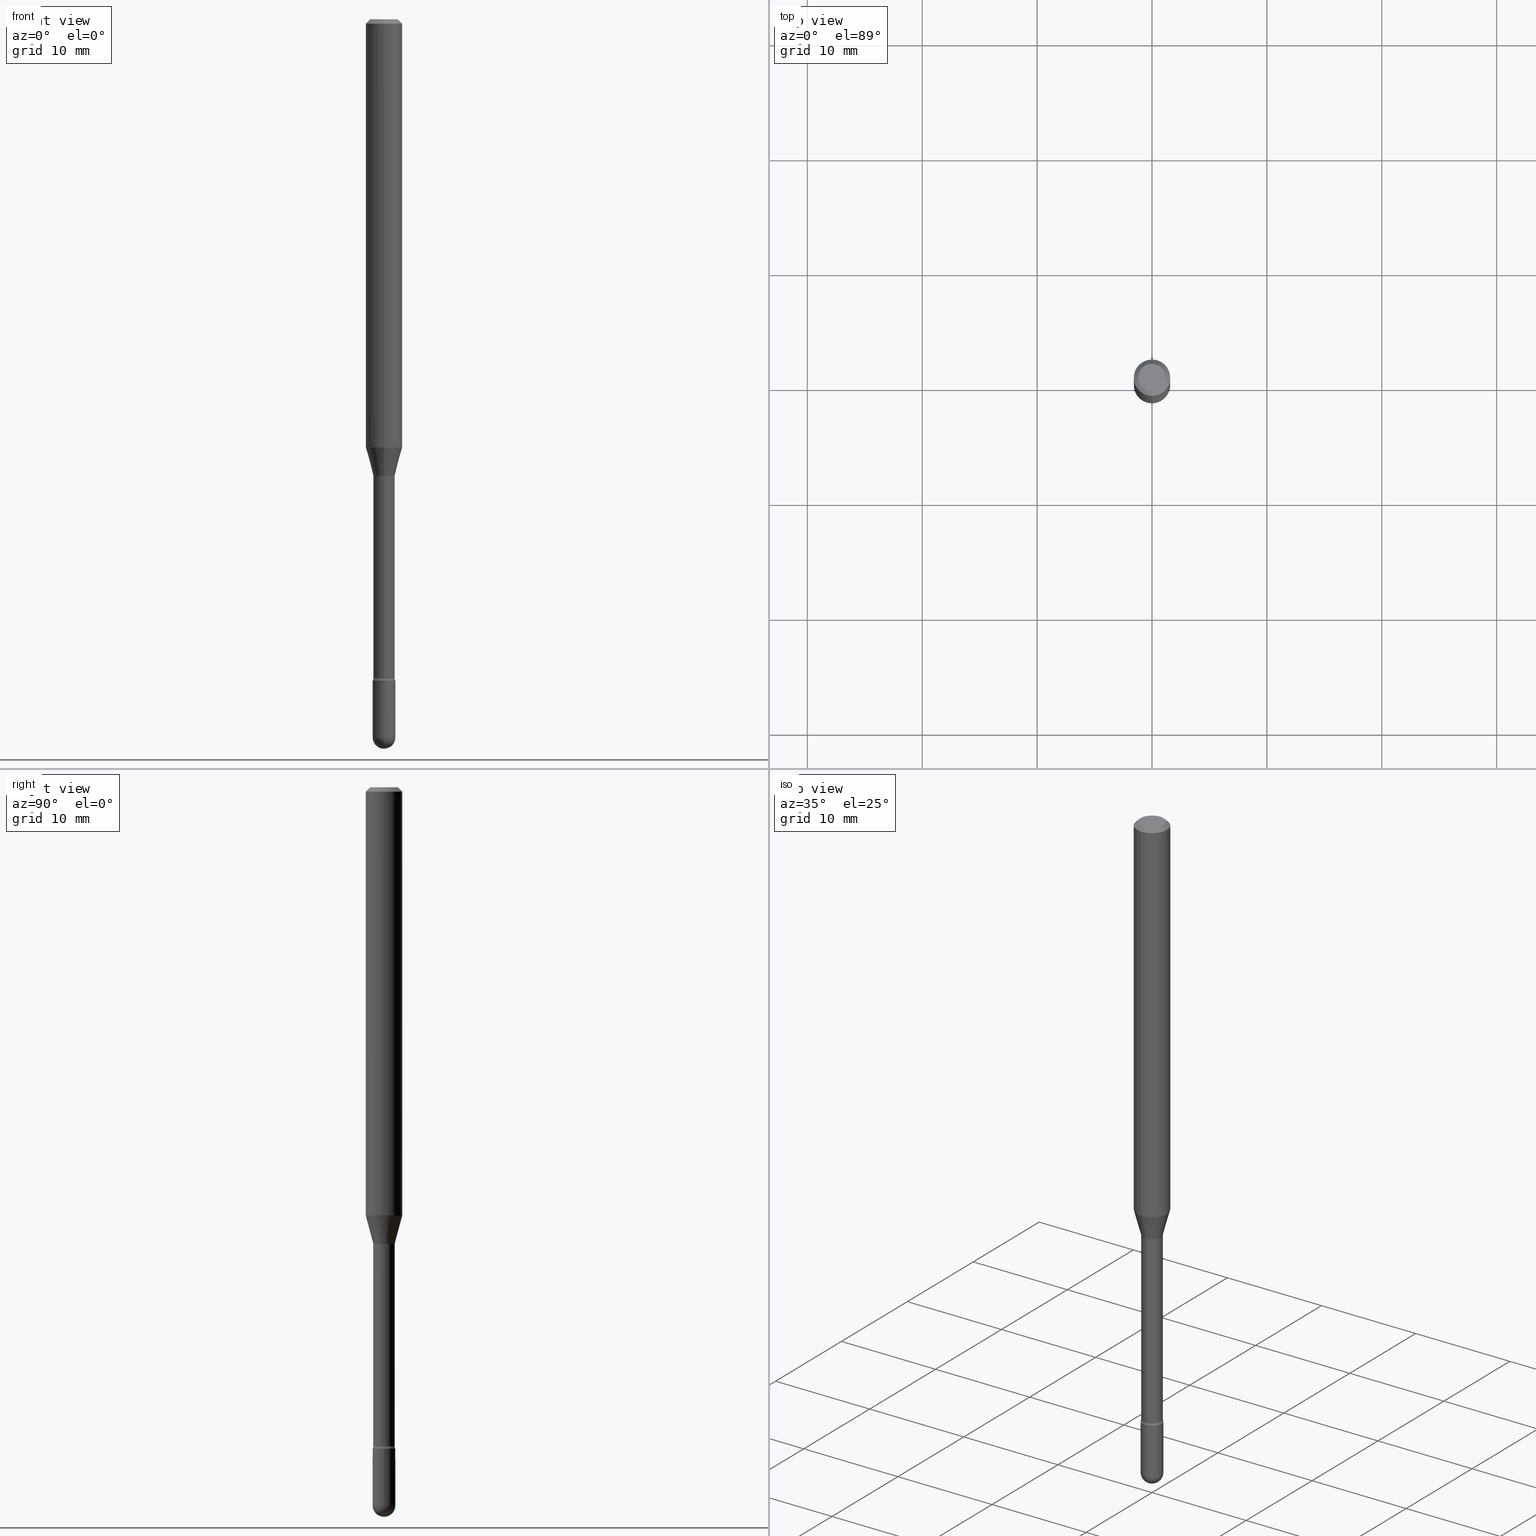
[diagram: canonical four-view strip — front | top / right | iso, engineering-drawing reading convention]
A machine part, canonical four-view strip (front | top / right | iso — engineering-drawing reading convention). The complete STEP part file that produces these views, byte-faithful:
ISO-10303-21;
HEADER;
FILE_DESCRIPTION (( 'STEP AP203' ),
    '1' );
FILE_NAME ('03795.STEP',
    '2024-04-09T20:29:45',
    ( '' ),
    ( '' ),
    'SwSTEP 2.0',
    'SolidWorks 2023',
    '' );
FILE_SCHEMA (( 'CONFIG_CONTROL_DESIGN' ));
ENDSEC;

DATA;
#1 = AXIS2_PLACEMENT_3D ( 'NONE', #217, #303, #262 ) ;
#2 = AXIS2_PLACEMENT_3D ( 'NONE', #484, #485, #46 ) ;
#3 =( NAMED_UNIT ( * ) PLANE_ANGLE_UNIT ( ) SI_UNIT ( $, .RADIAN. ) );
#4 = CARTESIAN_POINT ( 'NONE',  ( 4.440892098500625669E-16, 0.06250000000000000000, 2.598526516763685098E-16 ) ) ;
#5 = EDGE_CURVE ( 'NONE', #500, #62, #154, .T. ) ;
#6 = DIRECTION ( 'NONE',  ( -1.000000000000000000, 6.982962677686265922E-15, -4.883557194083112340E-29 ) ) ;
#7 = CARTESIAN_POINT ( 'NONE',  ( 4.440892098500987066E-16, 0.06249999999999995143, -0.01500000000000030129 ) ) ;
#8 = APPROVAL_ROLE ( '' ) ;
#9 = AXIS2_PLACEMENT_3D ( 'NONE', #145, #140, #232 ) ;
#10 = ORIENTED_EDGE ( 'NONE', *, *, #279, .F. ) ;
#11 = DIRECTION ( 'NONE',  ( -6.982962677686266711E-15, -1.000000000000000000, 3.491531955438041249E-15 ) ) ;
#12 = EDGE_LOOP ( 'NONE', ( #59, #552, #495, #470 ) ) ;
#13 = PERSON_AND_ORGANIZATION_ROLE ( 'classification_officer' ) ;
#14 = ADVANCED_FACE ( 'NONE', ( #448 ), #536, .T. ) ;
#15 = CARTESIAN_POINT ( 'NONE',  ( 5.541432314815520264E-29, -7.911696713818568140E-15, -2.266000000000000014 ) ) ;
#16 = FACE_OUTER_BOUND ( 'NONE', #106, .T. ) ;
#17 = VERTEX_POINT ( 'NONE', #469 ) ;
#18 = PERSON_AND_ORGANIZATION ( #211, #244 ) ;
#19 = DIRECTION ( 'NONE',  ( 2.445433460805833894E-29, -3.491531955438040460E-15, -1.000000000000000000 ) ) ;
#20 = ORIENTED_EDGE ( 'NONE', *, *, #115, .F. ) ;
#21 = CARTESIAN_POINT ( 'NONE',  ( -2.559255821371468665E-16, -0.03665000000000794705, -2.257939137763241177 ) ) ;
#22 = SHAPE_DEFINITION_REPRESENTATION ( #254, #84 ) ;
#23 = DIRECTION ( 'NONE',  ( -2.445433460805834174E-29, 3.491531955438040854E-15, 1.000000000000000000 ) ) ;
#24 = AXIS2_PLACEMENT_3D ( 'NONE', #299, #517, #32 ) ;
#25 = CARTESIAN_POINT ( 'NONE',  ( 0.03899999999999999994, -2.723355444297643682E-16, 1.901708942560414931E-30 ) ) ;
#26 = ORIENTED_EDGE ( 'NONE', *, *, #68, .F. ) ;
#27 = EDGE_CURVE ( 'NONE', #359, #190, #240, .T. ) ;
#28 = DIRECTION ( 'NONE',  ( -6.982962677686265133E-15, -1.000000000000000000, 3.491531955438040854E-15 ) ) ;
#29 = ORIENTED_EDGE ( 'NONE', *, *, #424, .F. ) ;
#30 = ORIENTED_EDGE ( 'NONE', *, *, #324, .F. ) ;
#31 = ORIENTED_EDGE ( 'NONE', *, *, #180, .F. ) ;
#32 = DIRECTION ( 'NONE',  ( -6.982962677686265922E-15, -1.000000000000000000, 3.491531955438041643E-15 ) ) ;
#33 = CARTESIAN_POINT ( 'NONE',  ( 4.440892098500981149E-16, 0.06249999999999484440, -1.467526486624345150 ) ) ;
#34 = EDGE_LOOP ( 'NONE', ( #354, #278, #425, #456 ) ) ;
#35 = CARTESIAN_POINT ( 'NONE',  ( 3.840629472727447874E-16, 0.04749999999999999362, -2.485923956665947867E-16 ) ) ;
#36 = CLOSED_SHELL ( 'NONE', ( #168, #566, #14, #483, #300 ) ) ;
#37 = CONICAL_SURFACE ( 'NONE', #499, 0.06250000000000000000, 0.7853981633974483900 ) ;
#38 = ORIENTED_EDGE ( 'NONE', *, *, #565, .F. ) ;
#39 = CARTESIAN_POINT ( 'NONE',  ( 2.723355444298251598E-16, 0.03899999999999149286, -2.460999999999999854 ) ) ;
#40 = CARTESIAN_POINT ( 'NONE',  ( -0.03899999999999999994, -7.975004477409334639E-15, -2.266000000000000014 ) ) ;
#41 = EDGE_CURVE ( 'NONE', #186, #283, #173, .T. ) ;
#42 = AXIS2_PLACEMENT_3D ( 'NONE', #170, #127, #250 ) ;
#43 = ADVANCED_FACE ( 'NONE', ( #199 ), #242, .T. ) ;
#44 = MANIFOLD_SOLID_BREP ( 'Body-Move/Copy2[1]', #36 ) ;
#45 = MANIFOLD_SOLID_BREP ( 'Body-Move/Copy2[2]', #337 ) ;
#46 = DIRECTION ( 'NONE',  ( -6.982962677686265922E-15, -1.000000000000000000, 3.491531955438040460E-15 ) ) ;
#47 = FACE_OUTER_BOUND ( 'NONE', #109, .T. ) ;
#48 = DIRECTION ( 'NONE',  ( -2.445433460805834174E-29, 3.491531955438040854E-15, 1.000000000000000000 ) ) ;
#49 = AXIS2_PLACEMENT_3D ( 'NONE', #358, #411, #114 ) ;
#50 = AXIS2_PLACEMENT_3D ( 'NONE', #88, #212, #388 ) ;
#51 = DIRECTION ( 'NONE',  ( 6.982962677686265922E-15, 1.000000000000000000, 0.000000000000000000 ) ) ;
#52 = DIRECTION ( 'NONE',  ( -2.445433460805834454E-29, 3.491531955438040460E-15, 1.000000000000000000 ) ) ;
#53 = APPLICATION_CONTEXT ( 'configuration controlled 3d designs of mechanical parts and assemblies' ) ;
#54 = PERSON_AND_ORGANIZATION ( #211, #244 ) ;
#55 = DIRECTION ( 'NONE',  ( -6.982962677686264344E-15, -1.000000000000000000, 0.000000000000000000 ) ) ;
#56 = FACE_OUTER_BOUND ( 'NONE', #503, .T. ) ;
#57 = CC_DESIGN_PERSON_AND_ORGANIZATION_ASSIGNMENT ( #368, #108, ( #340 ) ) ;
#58 = AXIS2_PLACEMENT_3D ( 'NONE', #377, #475, #166 ) ;
#59 = ORIENTED_EDGE ( 'NONE', *, *, #369, .F. ) ;
#60 = PERSON_AND_ORGANIZATION_ROLE ( 'creator' ) ;
#61 = CARTESIAN_POINT ( 'NONE',  ( 6.115339589726740991E-29, -8.726315285849526900E-15, -2.500000000000000000 ) ) ;
#62 = VERTEX_POINT ( 'NONE', #188 ) ;
#63 = DIRECTION ( 'NONE',  ( 1.839019923739594399E-15, 0.2588190451025241257, 0.9659258262890673130 ) ) ;
#64 = COORDINATED_UNIVERSAL_TIME_OFFSET ( 5, 0, .BEHIND. ) ;
#65 = DIRECTION ( 'NONE',  ( 1.000000000000000000, -6.982962677686265922E-15, 4.876176775795935793E-29 ) ) ;
#66 = EDGE_CURVE ( 'NONE', #417, #67, #89, .T. ) ;
#67 = VERTEX_POINT ( 'NONE', #318 ) ;
#68 = EDGE_CURVE ( 'NONE', #427, #313, #229, .T. ) ;
#69 = DATE_AND_TIME ( #226, #466 ) ;
#70 = CONICAL_SURFACE ( 'NONE', #349, 0.03716111260566391100, 0.2617993877991494633 ) ;
#71 = PLANE ( 'NONE',  #213 ) ;
#72 = CIRCLE ( 'NONE', #259, 0.03900000000000000688 ) ;
#73 = ORIENTED_EDGE ( 'NONE', *, *, #351, .F. ) ;
#74 = DIRECTION ( 'NONE',  ( 1.000000000000000000, -6.982962677686265922E-15, 4.876176775795935793E-29 ) ) ;
#75 = DIRECTION ( 'NONE',  ( -1.000000000000000000, 6.982962677686265922E-15, -4.883557194083112340E-29 ) ) ;
#76 = ORIENTED_EDGE ( 'NONE', *, *, #273, .F. ) ;
#77 = VERTEX_POINT ( 'NONE', #322 ) ;
#78 = DIRECTION ( 'NONE',  ( 1.000000000000000000, -6.982962677686258033E-15, 0.000000000000000000 ) ) ;
#79 = DIRECTION ( 'NONE',  ( 6.982962677686265922E-15, 1.000000000000000000, -3.483106191921935554E-15 ) ) ;
#80 = VERTEX_POINT ( 'NONE', #61 ) ;
#81 = CARTESIAN_POINT ( 'NONE',  ( 6.018298732021620914E-29, -8.592535574892981353E-15, -2.460999999999999854 ) ) ;
#82 = ADVANCED_FACE ( 'NONE', ( #236 ), #71, .F. ) ;
#83 = CONICAL_SURFACE ( 'NONE', #307, 0.06250000000000000000, 0.7853981633974483900 ) ;
#84 = ADVANCED_BREP_SHAPE_REPRESENTATION ( '03795', ( #44, #45, #391 ), #419 ) ;
#85 = CARTESIAN_POINT ( 'NONE',  ( 3.829542494015149710E-29, -5.467571747528758613E-15, -1.565974787463811246 ) ) ;
#86 = EDGE_CURVE ( 'NONE', #67, #77, #285, .T. ) ;
#87 = CARTESIAN_POINT ( 'NONE',  ( 3.819993272744496548E-29, -5.454095887340420113E-15, -1.562092501787273768 ) ) ;
#88 = CARTESIAN_POINT ( 'NONE',  ( -1.169113584055446105E-44, 1.669184350826100908E-30, 4.780733988912460139E-16 ) ) ;
#89 = CIRCLE ( 'NONE', #49, 0.03900000000000000688 ) ;
#90 = AXIS2_PLACEMENT_3D ( 'NONE', #253, #557, #331 ) ;
#91 = LOCAL_TIME ( 16, 29, 45.00000000000000000, #352 ) ;
#92 = DIRECTION ( 'NONE',  ( -6.982962677686265133E-15, -1.000000000000000000, 3.491531955438040854E-15 ) ) ;
#93 = CARTESIAN_POINT ( 'NONE',  ( -3.773273898774340269E-16, -0.04749999999999999362, 8.310314010001909345E-17 ) ) ;
#94 = EDGE_CURVE ( 'NONE', #125, #17, #206, .T. ) ;
#95 = CARTESIAN_POINT ( 'NONE',  ( 6.018298732021620914E-29, -8.592535574892981353E-15, -2.460999999999999854 ) ) ;
#96 = DIRECTION ( 'NONE',  ( -2.445433460805834454E-29, 3.491531955438040460E-15, 1.000000000000000000 ) ) ;
#97 = ORIENTED_EDGE ( 'NONE', *, *, #550, .T. ) ;
#98 = TOROIDAL_SURFACE ( 'NONE', #175, 0.05165000000000008473, 0.01500000000000002200 ) ;
#99 = AXIS2_PLACEMENT_3D ( 'NONE', #271, #310, #393 ) ;
#100 = APPLICATION_PROTOCOL_DEFINITION ( 'international standard', 'config_control_design', 1994, #130 ) ;
#101 = APPROVAL_STATUS ( 'not_yet_approved' ) ;
#102 = APPROVAL ( #192, 'UNSPECIFIED' ) ;
#103 = CARTESIAN_POINT ( 'NONE',  ( -2.594946623866095287E-16, -0.03716111260566937191, -1.562092501787273768 ) ) ;
#104 = DIRECTION ( 'NONE',  ( -6.982962677686266711E-15, -1.000000000000000000, 0.000000000000000000 ) ) ;
#105 = DIRECTION ( 'NONE',  ( -1.000000000000000000, 6.982962677686265922E-15, -4.883557194083112340E-29 ) ) ;
#106 = EDGE_LOOP ( 'NONE', ( #459, #223, #200, #371 ) ) ;
#107 = DIRECTION ( 'NONE',  ( -2.445468806185136597E-29, 3.491481338843145583E-15, 1.000000000000000000 ) ) ;
#108 = PERSON_AND_ORGANIZATION_ROLE ( 'creator' ) ;
#109 = EDGE_LOOP ( 'NONE', ( #38, #248, #123, #544 ) ) ;
#110 = CARTESIAN_POINT ( 'NONE',  ( 3.668150191208771282E-31, -5.237297933157090296E-17, -0.01500000000000008271 ) ) ;
#111 = ORIENTED_EDGE ( 'NONE', *, *, #336, .T. ) ;
#112 = CARTESIAN_POINT ( 'NONE',  ( 3.668150191208771282E-31, -5.237297933157090296E-17, -0.01500000000000008271 ) ) ;
#113 = MECHANICAL_CONTEXT ( 'NONE', #130, 'mechanical' ) ;
#114 = DIRECTION ( 'NONE',  ( 1.000000000000000000, -6.982962677686282488E-15, 0.000000000000000000 ) ) ;
#115 = EDGE_CURVE ( 'NONE', #190, #77, #433, .T. ) ;
#116 = EDGE_LOOP ( 'NONE', ( #460, #442, #509, #319 ) ) ;
#117 = DATE_AND_TIME ( #498, #350 ) ;
#118 = ORIENTED_EDGE ( 'NONE', *, *, #138, .F. ) ;
#119 = VERTEX_POINT ( 'NONE', #39 ) ;
#120 = AXIS2_PLACEMENT_3D ( 'NONE', #160, #292, #146 ) ;
#121 = ORIENTED_EDGE ( 'NONE', *, *, #380, .T. ) ;
#122 = LOCAL_TIME ( 16, 29, 45.00000000000000000, #64 ) ;
#123 = ORIENTED_EDGE ( 'NONE', *, *, #539, .T. ) ;
#124 = CARTESIAN_POINT ( 'NONE',  ( 5.541432314815520264E-29, -7.911696713818568140E-15, -2.266000000000000014 ) ) ;
#125 = VERTEX_POINT ( 'NONE', #520 ) ;
#126 = EDGE_CURVE ( 'NONE', #62, #325, #330, .T. ) ;
#127 = DIRECTION ( 'NONE',  ( -2.445468806185136597E-29, 3.491481338843145583E-15, 1.000000000000000000 ) ) ;
#128 = DIRECTION ( 'NONE',  ( 1.000000000000000000, -6.982962677686282488E-15, 0.000000000000000000 ) ) ;
#129 = CC_DESIGN_APPROVAL ( #224, ( #340 ) ) ;
#130 = APPLICATION_CONTEXT ( 'configuration controlled 3d designs of mechanical parts and assemblies' ) ;
#131 = ADVANCED_FACE ( 'NONE', ( #553 ), #387, .T. ) ;
#132 = CARTESIAN_POINT ( 'NONE',  ( 6.018298732021620914E-29, -8.592535574892981353E-15, -2.460999999999999854 ) ) ;
#133 = FACE_OUTER_BOUND ( 'NONE', #378, .T. ) ;
#134 = CIRCLE ( 'NONE', #447, 0.04749999999999999362 ) ;
#135 = CC_DESIGN_SECURITY_CLASSIFICATION ( #294, ( #430 ) ) ;
#136 = DIRECTION ( 'NONE',  ( -2.445433460805834174E-29, 3.491531955438040854E-15, 1.000000000000000000 ) ) ;
#137 = EDGE_CURVE ( 'NONE', #17, #451, #293, .T. ) ;
#138 = EDGE_CURVE ( 'NONE', #77, #190, #390, .T. ) ;
#139 = DIRECTION ( 'NONE',  ( 1.000000000000000000, -6.982962677686282488E-15, 0.000000000000000000 ) ) ;
#140 = DIRECTION ( 'NONE',  ( 1.000000000000000000, -7.105427357601001070E-15, 4.926316128416591653E-29 ) ) ;
#141 =( LENGTH_UNIT ( ) NAMED_UNIT ( * ) SI_UNIT ( $, .METRE. ) );
#142 = AXIS2_PLACEMENT_3D ( 'NONE', #205, #429, #74 ) ;
#143 = APPROVAL_PERSON_ORGANIZATION ( #54, #102, #348 ) ;
#144 = ADVANCED_FACE ( 'NONE', ( #201 ), #467, .T. ) ;
#145 = CARTESIAN_POINT ( 'NONE',  ( 3.669953230201474697E-16, 0.05164999999999220215, -2.257939137763242066 ) ) ;
#146 = DIRECTION ( 'NONE',  ( -7.105427357601000281E-15, -1.000000000000000000, 0.000000000000000000 ) ) ;
#147 = ORIENTED_EDGE ( 'NONE', *, *, #41, .T. ) ;
#148 = CARTESIAN_POINT ( 'NONE',  ( 2.771116669464944896E-16, 0.03899999999999211042, -2.266000000000000458 ) ) ;
#149 = DIRECTION ( 'NONE',  ( -2.445433460805834174E-29, 3.491531955438040854E-15, 1.000000000000000000 ) ) ;
#150 = FACE_OUTER_BOUND ( 'NONE', #34, .T. ) ;
#151 = VERTEX_POINT ( 'NONE', #426 ) ;
#152 = LINE ( 'NONE', #457, #182 ) ;
#153 = APPROVAL_DATE_TIME ( #117, #224 ) ;
#154 = LINE ( 'NONE', #295, #343 ) ;
#155 = ORIENTED_EDGE ( 'NONE', *, *, #369, .T. ) ;
#156 = APPROVAL_DATE_TIME ( #69, #102 ) ;
#157 = DIRECTION ( 'NONE',  ( -6.982962677686265922E-15, -1.000000000000000000, 3.491531955438040854E-15 ) ) ;
#158 = ORIENTED_EDGE ( 'NONE', *, *, #66, .T. ) ;
#159 = ORIENTED_EDGE ( 'NONE', *, *, #137, .T. ) ;
#160 = CARTESIAN_POINT ( 'NONE',  ( 6.018298732021620914E-29, -8.592535574892981353E-15, -2.460999999999999854 ) ) ;
#161 = CARTESIAN_POINT ( 'NONE',  ( -0.03899999999999999994, 2.771116669464390721E-16, -1.918384685199413078E-30 ) ) ;
#162 = VERTEX_POINT ( 'NONE', #35 ) ;
#163 = DIRECTION ( 'NONE',  ( -2.445468806185136597E-29, 3.491481338843145583E-15, 1.000000000000000000 ) ) ;
#164 = DIMENSIONAL_EXPONENTS ( 1.000000000000000000, 0.000000000000000000, 0.000000000000000000, 0.000000000000000000, 0.000000000000000000, 0.000000000000000000, 0.000000000000000000 ) ;
#165 = CIRCLE ( 'NONE', #366, 0.03900000000000000688 ) ;
#166 = DIRECTION ( 'NONE',  ( -6.982962677686265922E-15, -1.000000000000000000, 0.000000000000000000 ) ) ;
#167 = APPROVAL_PERSON_ORGANIZATION ( #18, #304, #183 ) ;
#168 = ADVANCED_FACE ( 'NONE', ( #335 ), #474, .T. ) ;
#169 = ORIENTED_EDGE ( 'NONE', *, *, #138, .T. ) ;
#170 = CARTESIAN_POINT ( 'NONE',  ( 5.541432314815520264E-29, -7.911696713818568140E-15, -2.266000000000000014 ) ) ;
#171 = ORIENTED_EDGE ( 'NONE', *, *, #527, .F. ) ;
#172 = EDGE_LOOP ( 'NONE', ( #412, #555, #118, #514, #247 ) ) ;
#173 = CIRCLE ( 'NONE', #480, 0.06250000000000000000 ) ;
#174 = DIRECTION ( 'NONE',  ( 6.982962677686266711E-15, 1.000000000000000000, 0.000000000000000000 ) ) ;
#175 = AXIS2_PLACEMENT_3D ( 'NONE', #251, #23, #28 ) ;
#176 = CARTESIAN_POINT ( 'NONE',  ( -3.606700223024573445E-16, -0.05165000000000546237, -1.565974787463811024 ) ) ;
#177 = PRODUCT_RELATED_PRODUCT_CATEGORY ( 'detail', '', ( #385 ) ) ;
#178 = CIRCLE ( 'NONE', #99, 0.03665000000000000202 ) ;
#179 = LENGTH_MEASURE_WITH_UNIT ( LENGTH_MEASURE( 0.02539999999999999897 ), #141 );
#180 = EDGE_CURVE ( 'NONE', #119, #359, #379, .T. ) ;
#181 = DIRECTION ( 'NONE',  ( 6.982962677686265922E-15, 1.000000000000000000, -3.483106191921935554E-15 ) ) ;
#182 = VECTOR ( 'NONE', #63, 39.37007874015748854 ) ;
#183 = APPROVAL_ROLE ( '' ) ;
#184 = DIRECTION ( 'NONE',  ( -2.445468806185136877E-29, 3.491481338843145188E-15, 1.000000000000000000 ) ) ;
#185 = DIRECTION ( 'NONE',  ( -2.445433460805834174E-29, 3.491531955438040854E-15, 1.000000000000000000 ) ) ;
#186 = VERTEX_POINT ( 'NONE', #33 ) ;
#187 = APPLICATION_PROTOCOL_DEFINITION ( 'international standard', 'config_control_design', 1994, #53 ) ;
#188 = CARTESIAN_POINT ( 'NONE',  ( -4.364351673553912750E-16, -0.06250000000000005551, -0.01499999999999986587 ) ) ;
#189 = CYLINDRICAL_SURFACE ( 'NONE', #320, 0.06250000000000000000 ) ;
#190 = VERTEX_POINT ( 'NONE', #40 ) ;
#191 = LINE ( 'NONE', #409, #476 ) ;
#192 = APPROVAL_STATUS ( 'not_yet_approved' ) ;
#193 = DIRECTION ( 'NONE',  ( -6.982962677686265922E-15, -1.000000000000000000, 0.000000000000000000 ) ) ;
#194 = ORIENTED_EDGE ( 'NONE', *, *, #137, .F. ) ;
#195 = CIRCLE ( 'NONE', #58, 0.03665000000000006447 ) ;
#196 = FACE_OUTER_BOUND ( 'NONE', #506, .T. ) ;
#197 = EDGE_LOOP ( 'NONE', ( #29, #30, #298, #159 ) ) ;
#198 = ORIENTED_EDGE ( 'NONE', *, *, #5, .T. ) ;
#199 = FACE_OUTER_BOUND ( 'NONE', #256, .T. ) ;
#200 = ORIENTED_EDGE ( 'NONE', *, *, #126, .F. ) ;
#201 = FACE_OUTER_BOUND ( 'NONE', #237, .T. ) ;
#202 = CC_DESIGN_DATE_AND_TIME_ASSIGNMENT ( #444, #234, ( #294 ) ) ;
#203 = EDGE_CURVE ( 'NONE', #313, #427, #195, .T. ) ;
#204 = EDGE_LOOP ( 'NONE', ( #534, #473, #538, #542 ) ) ;
#205 = CARTESIAN_POINT ( 'NONE',  ( 0.000000000000000000, 0.000000000000000000, 0.000000000000000000 ) ) ;
#206 = CIRCLE ( 'NONE', #291, 0.01500000000000001853 ) ;
#207 = CIRCLE ( 'NONE', #525, 0.01500000000000001853 ) ;
#208 = AXIS2_PLACEMENT_3D ( 'NONE', #87, #436, #302 ) ;
#209 = ORIENTED_EDGE ( 'NONE', *, *, #261, .F. ) ;
#210 = DIRECTION ( 'NONE',  ( -6.982962677686265922E-15, -1.000000000000000000, 3.483106191921935554E-15 ) ) ;
#211 = PERSON ( 'UNSPECIFIED', 'UNSPECIFIED', 'UNSPECIFIED', ('UNSPECIFIED'), ('UNSPECIFIED'), ('UNSPECIFIED') ) ;
#212 = DIRECTION ( 'NONE',  ( -2.445433460805834174E-29, 3.491531955438040854E-15, 1.000000000000000000 ) ) ;
#213 = AXIS2_PLACEMENT_3D ( 'NONE', #551, #19, #328 ) ;
#214 = CARTESIAN_POINT ( 'NONE',  ( -2.771116669463794638E-16, -0.03900000000000868744, -2.460999999999999854 ) ) ;
#215 = VECTOR ( 'NONE', #450, 39.37007874015748143 ) ;
#216 = CIRCLE ( 'NONE', #208, 0.03716111260566391100 ) ;
#217 = CARTESIAN_POINT ( 'NONE',  ( 3.669953230201299669E-16, 0.05164999999999453362, -1.565974787463811690 ) ) ;
#218 = DIRECTION ( 'NONE',  ( 6.982962677686265922E-15, 1.000000000000000000, 0.000000000000000000 ) ) ;
#219 = CC_DESIGN_PERSON_AND_ORGANIZATION_ASSIGNMENT ( #413, #13, ( #294 ) ) ;
#220 = PLANE ( 'NONE',  #2 ) ;
#222 = LINE ( 'NONE', #441, #515 ) ;
#221 = AXIS2_PLACEMENT_3D ( 'NONE', #132, #562, #174 ) ;
#223 = ORIENTED_EDGE ( 'NONE', *, *, #351, .T. ) ;
#224 = APPROVAL ( #492, 'UNSPECIFIED' ) ;
#225 =( CONVERSION_BASED_UNIT ( 'INCH', #179 ) LENGTH_UNIT ( ) NAMED_UNIT ( #164 ) );
#226 = CALENDAR_DATE ( 2024, 9, 4 ) ;
#227 = CARTESIAN_POINT ( 'NONE',  ( 2.604139126560769297E-16, 0.03665000000000003672, 3.501087527244417361E-16 ) ) ;
#228 = AXIS2_PLACEMENT_3D ( 'NONE', #277, #454, #193 ) ;
#229 = CIRCLE ( 'NONE', #228, 0.03665000000000006447 ) ;
#230 = CIRCLE ( 'NONE', #556, 0.06250000000000000000 ) ;
#231 = CARTESIAN_POINT ( 'NONE',  ( 3.588738375009998954E-29, -5.123915623500615867E-15, -1.467526486624344928 ) ) ;
#232 = DIRECTION ( 'NONE',  ( 7.105427357601001859E-15, 1.000000000000000000, 0.000000000000000000 ) ) ;
#233 = DIRECTION ( 'NONE',  ( 1.000000000000000000, -6.982962677686265922E-15, 4.876176775795935793E-29 ) ) ;
#234 = DATE_TIME_ROLE ( 'classification_date' ) ;
#235 = ADVANCED_FACE ( 'NONE', ( #260 ), #37, .T. ) ;
#236 = FACE_OUTER_BOUND ( 'NONE', #519, .T. ) ;
#237 = EDGE_LOOP ( 'NONE', ( #73, #147, #111, #76 ) ) ;
#238 = CARTESIAN_POINT ( 'NONE',  ( 3.819993272744496548E-29, -5.454095887340420113E-15, -1.562092501787273768 ) ) ;
#239 = PERSON_AND_ORGANIZATION ( #211, #244 ) ;
#240 = LINE ( 'NONE', #161, #416 ) ;
#241 = ORIENTED_EDGE ( 'NONE', *, *, #115, .T. ) ;
#242 = CONICAL_SURFACE ( 'NONE', #513, 0.03716111260566391100, 0.2617993877991494633 ) ;
#243 = AXIS2_PLACEMENT_3D ( 'NONE', #462, #245, #414 ) ;
#244 = ORGANIZATION ( 'UNSPECIFIED', 'UNSPECIFIED', '' ) ;
#245 = DIRECTION ( 'NONE',  ( -2.445433460805834174E-29, 3.491531955438040854E-15, 1.000000000000000000 ) ) ;
#246 = ORIENTED_EDGE ( 'NONE', *, *, #435, .F. ) ;
#247 = ORIENTED_EDGE ( 'NONE', *, *, #527, .T. ) ;
#248 = ORIENTED_EDGE ( 'NONE', *, *, #424, .T. ) ;
#249 = ADVANCED_FACE ( 'NONE', ( #547 ), #70, .T. ) ;
#250 = DIRECTION ( 'NONE',  ( 1.000000000000000000, -6.982962677686258033E-15, 0.000000000000000000 ) ) ;
#251 = CARTESIAN_POINT ( 'NONE',  ( 5.521719727664570921E-29, -7.883552363743941400E-15, -2.257939137763241622 ) ) ;
#252 = ORIENTED_EDGE ( 'NONE', *, *, #561, .F. ) ;
#253 = CARTESIAN_POINT ( 'NONE',  ( 3.829487144042308608E-29, -5.467651011840191045E-15, -1.565974787463811246 ) ) ;
#254 = PRODUCT_DEFINITION_SHAPE ( 'NONE', 'NONE',  #340 ) ;
#255 = DIRECTION ( 'NONE',  ( -2.445433460805834174E-29, 3.491531955438040854E-15, 1.000000000000000000 ) ) ;
#256 = EDGE_LOOP ( 'NONE', ( #420, #548, #375, #546 ) ) ;
#257 = DIRECTION ( 'NONE',  ( -2.445468806185136597E-29, 3.491481338843145583E-15, 1.000000000000000000 ) ) ;
#258 = VECTOR ( 'NONE', #96, 39.37007874015748143 ) ;
#259 = AXIS2_PLACEMENT_3D ( 'NONE', #95, #478, #139 ) ;
#260 = FACE_OUTER_BOUND ( 'NONE', #362, .T. ) ;
#261 = EDGE_CURVE ( 'NONE', #359, #417, #165, .T. ) ;
#262 = DIRECTION ( 'NONE',  ( 7.105427357600998703E-15, 1.000000000000000000, 0.000000000000000000 ) ) ;
#263 = LINE ( 'NONE', #394, #382 ) ;
#264 = AXIS2_PLACEMENT_3D ( 'NONE', #124, #163, #78 ) ;
#265 = EDGE_CURVE ( 'NONE', #313, #17, #191, .T. ) ;
#266 = CIRCLE ( 'NONE', #9, 0.01500000000000001853 ) ;
#267 = TOROIDAL_SURFACE ( 'NONE', #449, 0.05164999999999999453, 0.01500000000000001679 ) ;
#268 = EDGE_CURVE ( 'NONE', #283, #186, #332, .T. ) ;
#269 = DIRECTION ( 'NONE',  ( -1.000000000000000000, 6.982962677686265922E-15, -4.883557194083112340E-29 ) ) ;
#270 = DIRECTION ( 'NONE',  ( -2.445433460805834174E-29, 3.491531955438040854E-15, 1.000000000000000000 ) ) ;
#271 = CARTESIAN_POINT ( 'NONE',  ( 3.829487144042308608E-29, -5.467651011840191045E-15, -1.565974787463811246 ) ) ;
#272 = AXIS2_PLACEMENT_3D ( 'NONE', #85, #327, #157 ) ;
#273 = EDGE_CURVE ( 'NONE', #325, #62, #230, .T. ) ;
#274 = AXIS2_PLACEMENT_3D ( 'NONE', #398, #270, #92 ) ;
#275 = CALENDAR_DATE ( 2024, 9, 4 ) ;
#276 = LINE ( 'NONE', #227, #258 ) ;
#277 = CARTESIAN_POINT ( 'NONE',  ( 5.521639919949304874E-29, -7.883666652934574778E-15, -2.257939137763241177 ) ) ;
#278 = ORIENTED_EDGE ( 'NONE', *, *, #380, .F. ) ;
#279 = EDGE_CURVE ( 'NONE', #80, #417, #563, .T. ) ;
#280 = COORDINATED_UNIVERSAL_TIME_OFFSET ( 5, 0, .BEHIND. ) ;
#281 = DIRECTION ( 'NONE',  ( -6.982962677686265922E-15, -1.000000000000000000, 4.370956789862821150E-15 ) ) ;
#282 = CARTESIAN_POINT ( 'NONE',  ( -1.169113584055446105E-44, 1.669184350826100908E-30, 4.780733988912460139E-16 ) ) ;
#283 = VERTEX_POINT ( 'NONE', #314 ) ;
#284 = DATE_TIME_ROLE ( 'creation_date' ) ;
#285 = LINE ( 'NONE', #25, #530 ) ;
#286 = EDGE_LOOP ( 'NONE', ( #464, #334 ) ) ;
#287 = DATE_AND_TIME ( #453, #122 ) ;
#288 = ORIENTED_EDGE ( 'NONE', *, *, #550, .F. ) ;
#289 = EDGE_CURVE ( 'NONE', #125, #283, #494, .T. ) ;
#290 = ORIENTED_EDGE ( 'NONE', *, *, #126, .T. ) ;
#291 = AXIS2_PLACEMENT_3D ( 'NONE', #176, #75, #376 ) ;
#292 = DIRECTION ( 'NONE',  ( -1.000000000000000000, 7.105427357601001070E-15, -4.926315508542082329E-29 ) ) ;
#293 = CIRCLE ( 'NONE', #90, 0.03665000000000000202 ) ;
#294 = SECURITY_CLASSIFICATION ( '', '', #406 ) ;
#295 = CARTESIAN_POINT ( 'NONE',  ( -4.287811248607203282E-16, -0.06250000000000005551, -0.01499999999999986587 ) ) ;
#296 = ORIENTED_EDGE ( 'NONE', *, *, #261, .T. ) ;
#297 = DIRECTION ( 'NONE',  ( -2.445433460805834174E-29, 3.491531955438040854E-15, 1.000000000000000000 ) ) ;
#298 = ORIENTED_EDGE ( 'NONE', *, *, #94, .T. ) ;
#299 = CARTESIAN_POINT ( 'NONE',  ( -1.169113584055446105E-44, 1.669184350826100908E-30, 4.780733988912460139E-16 ) ) ;
#300 = ADVANCED_FACE ( 'NONE', ( #56 ), #535, .T. ) ;
#301 = CIRCLE ( 'NONE', #1, 0.01500000000000001853 ) ;
#302 = DIRECTION ( 'NONE',  ( -6.982962677686266711E-15, -1.000000000000000000, 0.000000000000000000 ) ) ;
#303 = DIRECTION ( 'NONE',  ( 1.000000000000000000, -7.105427357601001070E-15, 4.926316128416591653E-29 ) ) ;
#304 = APPROVAL ( #101, 'UNSPECIFIED' ) ;
#305 = EDGE_CURVE ( 'NONE', #151, #186, #152, .T. ) ;
#306 = DIRECTION ( 'NONE',  ( -6.982962677686266711E-15, -1.000000000000000000, 3.491531955438041249E-15 ) ) ;
#307 = AXIS2_PLACEMENT_3D ( 'NONE', #110, #493, #181 ) ;
#308 = AXIS2_PLACEMENT_3D ( 'NONE', #497, #107, #233 ) ;
#309 = AXIS2_PLACEMENT_3D ( 'NONE', #342, #136, #306 ) ;
#310 = DIRECTION ( 'NONE',  ( -2.445433460805834174E-29, 3.491531955438040854E-15, 1.000000000000000000 ) ) ;
#311 = DIRECTION ( 'NONE',  ( 4.937700262164548042E-15, 0.7071067811865451302, -0.7071067811865499042 ) ) ;
#312 = FACE_OUTER_BOUND ( 'NONE', #496, .T. ) ;
#313 = VERTEX_POINT ( 'NONE', #21 ) ;
#314 = CARTESIAN_POINT ( 'NONE',  ( -4.364351673553559242E-16, -0.06250000000000516254, -1.467526486624344484 ) ) ;
#315 = DIRECTION ( 'NONE',  ( -2.445433460805834174E-29, 3.491531955438040854E-15, 1.000000000000000000 ) ) ;
#316 = CARTESIAN_POINT ( 'NONE',  ( -3.606700223024410249E-16, -0.05165000000000796038, -2.257939137763241177 ) ) ;
#317 = DIRECTION ( 'NONE',  ( -2.445433460805834454E-29, 3.491531955438040460E-15, 1.000000000000000000 ) ) ;
#318 = CARTESIAN_POINT ( 'NONE',  ( 0.03900000000000000688, -8.524451688785538770E-15, -2.460999999999999854 ) ) ;
#319 = ORIENTED_EDGE ( 'NONE', *, *, #539, .F. ) ;
#320 = AXIS2_PLACEMENT_3D ( 'NONE', #282, #48, #364 ) ;
#321 = APPROVAL_DATE_TIME ( #287, #304 ) ;
#322 = CARTESIAN_POINT ( 'NONE',  ( 0.03899999999999999994, -8.184032258248332163E-15, -2.266000000000000014 ) ) ;
#323 = ORIENTED_EDGE ( 'NONE', *, *, #435, .T. ) ;
#324 = EDGE_CURVE ( 'NONE', #125, #151, #345, .T. ) ;
#325 = VERTEX_POINT ( 'NONE', #7 ) ;
#326 = ORIENTED_EDGE ( 'NONE', *, *, #355, .T. ) ;
#327 = DIRECTION ( 'NONE',  ( -2.445433460805834174E-29, 3.491531955438040854E-15, 1.000000000000000000 ) ) ;
#328 = DIRECTION ( 'NONE',  ( 6.982962677686265922E-15, 1.000000000000000000, -3.491531955438040460E-15 ) ) ;
#329 = ORIENTED_EDGE ( 'NONE', *, *, #279, .T. ) ;
#330 = CIRCLE ( 'NONE', #532, 0.06250000000000000000 ) ;
#331 = DIRECTION ( 'NONE',  ( -6.982962677686265133E-15, -1.000000000000000000, 0.000000000000000000 ) ) ;
#332 = CIRCLE ( 'NONE', #481, 0.06250000000000000000 ) ;
#333 = TOROIDAL_SURFACE ( 'NONE', #274, 0.05165000000000008473, 0.01500000000000002200 ) ;
#334 = ORIENTED_EDGE ( 'NONE', *, *, #383, .F. ) ;
#335 = FACE_OUTER_BOUND ( 'NONE', #172, .T. ) ;
#336 = EDGE_CURVE ( 'NONE', #283, #62, #222, .T. ) ;
#337 = CLOSED_SHELL ( 'NONE', ( #528, #432, #516, #235, #400, #43, #249, #144, #353, #82, #487, #455, #131, #443 ) ) ;
#338 = AXIS2_PLACEMENT_3D ( 'NONE', #472, #422, #560 ) ;
#339 = AXIS2_PLACEMENT_3D ( 'NONE', #347, #6, #218 ) ;
#340 = PRODUCT_DEFINITION ( 'UNKNOWN', '', #430, #502 ) ;
#341 = CYLINDRICAL_SURFACE ( 'NONE', #50, 0.03665000000000003672 ) ;
#342 = CARTESIAN_POINT ( 'NONE',  ( 2.023295837975579445E-45, -2.889297104937376759E-31, -8.274462778328783430E-17 ) ) ;
#343 = VECTOR ( 'NONE', #370, 39.37007874015748143 ) ;
#344 = FACE_OUTER_BOUND ( 'NONE', #286, .T. ) ;
#345 = CIRCLE ( 'NONE', #554, 0.03716111260566391100 ) ;
#346 =( NAMED_UNIT ( * ) SI_UNIT ( $, .STERADIAN. ) SOLID_ANGLE_UNIT ( ) );
#347 = CARTESIAN_POINT ( 'NONE',  ( 6.018298732021620914E-29, -8.592535574892981353E-15, -2.460999999999999854 ) ) ;
#348 = APPROVAL_ROLE ( '' ) ;
#349 = AXIS2_PLACEMENT_3D ( 'NONE', #508, #255, #363 ) ;
#350 = LOCAL_TIME ( 16, 29, 45.00000000000000000, #458 ) ;
#351 = EDGE_CURVE ( 'NONE', #186, #325, #537, .T. ) ;
#352 = COORDINATED_UNIVERSAL_TIME_OFFSET ( 5, 0, .BEHIND. ) ;
#353 = ADVANCED_FACE ( 'NONE', ( #150 ), #83, .T. ) ;
#354 = ORIENTED_EDGE ( 'NONE', *, *, #5, .F. ) ;
#355 = EDGE_CURVE ( 'NONE', #427, #451, #276, .T. ) ;
#356 = ORIENTED_EDGE ( 'NONE', *, *, #27, .F. ) ;
#357 = CARTESIAN_POINT ( 'NONE',  ( 3.588738375009998954E-29, -5.123915623500615867E-15, -1.467526486624344928 ) ) ;
#358 = CARTESIAN_POINT ( 'NONE',  ( 6.018298732021620914E-29, -8.592535574892981353E-15, -2.460999999999999854 ) ) ;
#359 = VERTEX_POINT ( 'NONE', #399 ) ;
#360 = DIRECTION ( 'NONE',  ( -2.445433460805834174E-29, 3.491531955438040854E-15, 1.000000000000000000 ) ) ;
#361 = PERSON_AND_ORGANIZATION_ROLE ( 'design_owner' ) ;
#362 = EDGE_LOOP ( 'NONE', ( #288, #198, #290, #252 ) ) ;
#363 = DIRECTION ( 'NONE',  ( -6.982962677686266711E-15, -1.000000000000000000, 0.000000000000000000 ) ) ;
#364 = DIRECTION ( 'NONE',  ( -6.982962677686265922E-15, -1.000000000000000000, 3.491531955438041643E-15 ) ) ;
#365 = EDGE_LOOP ( 'NONE', ( #373, #326, #194, #559 ) ) ;
#366 = AXIS2_PLACEMENT_3D ( 'NONE', #431, #543, #367 ) ;
#367 = DIRECTION ( 'NONE',  ( 1.000000000000000000, -6.982962677686282488E-15, 0.000000000000000000 ) ) ;
#368 = PERSON_AND_ORGANIZATION ( #211, #244 ) ;
#369 = EDGE_CURVE ( 'NONE', #427, #386, #266, .T. ) ;
#370 = DIRECTION ( 'NONE',  ( -4.851104656540964275E-15, -0.7071067811865500152, -0.7071067811865450192 ) ) ;
#371 = ORIENTED_EDGE ( 'NONE', *, *, #336, .F. ) ;
#372 = CARTESIAN_POINT ( 'NONE',  ( -2.723355444297090986E-16, -0.03900000000000791722, -2.266000000000000014 ) ) ;
#373 = ORIENTED_EDGE ( 'NONE', *, *, #203, .T. ) ;
#374 = DIRECTION ( 'NONE',  ( 2.445433460805834174E-29, -3.491531955438040854E-15, -1.000000000000000000 ) ) ;
#375 = ORIENTED_EDGE ( 'NONE', *, *, #268, .F. ) ;
#376 = DIRECTION ( 'NONE',  ( -6.982962677686263555E-15, -1.000000000000000000, 0.000000000000000000 ) ) ;
#377 = CARTESIAN_POINT ( 'NONE',  ( 5.521639919949304874E-29, -7.883666652934574778E-15, -2.257939137763241177 ) ) ;
#378 = EDGE_LOOP ( 'NONE', ( #246, #329, #209, #31 ) ) ;
#379 = CIRCLE ( 'NONE', #465, 0.03900000000000000688 ) ;
#380 = EDGE_CURVE ( 'NONE', #162, #500, #134, .T. ) ;
#381 = CARTESIAN_POINT ( 'NONE',  ( 3.668150191208771282E-31, -5.237297933157090296E-17, -0.01500000000000008271 ) ) ;
#382 = VECTOR ( 'NONE', #311, 39.37007874015748143 ) ;
#383 = EDGE_CURVE ( 'NONE', #386, #415, #418, .T. ) ;
#384 = CC_DESIGN_PERSON_AND_ORGANIZATION_ASSIGNMENT ( #239, #461, ( #430 ) ) ;
#385 = PRODUCT ( '03795', '03795', '', ( #113 ) ) ;
#386 = VERTEX_POINT ( 'NONE', #148 ) ;
#387 = CYLINDRICAL_SURFACE ( 'NONE', #338, 0.03665000000000003672 ) ;
#388 = DIRECTION ( 'NONE',  ( -6.982962677686265922E-15, -1.000000000000000000, 3.491531955438039671E-15 ) ) ;
#389 = EDGE_CURVE ( 'NONE', #313, #415, #207, .T. ) ;
#390 = CIRCLE ( 'NONE', #42, 0.03899999999999999994 ) ;
#391 = AXIS2_PLACEMENT_3D ( 'NONE', #564, #522, #523 ) ;
#392 = CARTESIAN_POINT ( 'NONE',  ( 2.687627898013134923E-16, 0.03664999999999218189, -2.257939137763241177 ) ) ;
#393 = DIRECTION ( 'NONE',  ( -6.982962677686265133E-15, -1.000000000000000000, 0.000000000000000000 ) ) ;
#394 = CARTESIAN_POINT ( 'NONE',  ( 4.364351673553919652E-16, 0.06249999999999995143, -0.01500000000000030129 ) ) ;
#395 = CIRCLE ( 'NONE', #221, 0.03900000000000016648 ) ;
#396 = AXIS2_PLACEMENT_3D ( 'NONE', #440, #269, #51 ) ;
#397 = ORIENTED_EDGE ( 'NONE', *, *, #383, .T. ) ;
#398 = CARTESIAN_POINT ( 'NONE',  ( 5.521719727664570921E-29, -7.883552363743941400E-15, -2.257939137763241622 ) ) ;
#399 = CARTESIAN_POINT ( 'NONE',  ( -0.03900000000000000688, -7.975004477409334639E-15, -2.460999999999999854 ) ) ;
#400 = ADVANCED_FACE ( 'NONE', ( #16 ), #189, .T. ) ;
#401 = PERSON_AND_ORGANIZATION ( #211, #244 ) ;
#402 = EDGE_LOOP ( 'NONE', ( #169, #241 ) ) ;
#404 = VECTOR ( 'NONE', #446, 39.37007874015748854 ) ;
#403 = CARTESIAN_POINT ( 'NONE',  ( 2.023295837975579445E-45, -2.889297104937376759E-31, -8.274462778328783430E-17 ) ) ;
#405 = APPROVAL_PERSON_ORGANIZATION ( #410, #224, #8 ) ;
#406 = SECURITY_CLASSIFICATION_LEVEL ( 'unclassified' ) ;
#407 = CARTESIAN_POINT ( 'NONE',  ( 3.819993272744496548E-29, -5.454095887340420113E-15, -1.562092501787273768 ) ) ;
#408 = DIRECTION ( 'NONE',  ( -6.982962677686267499E-15, -1.000000000000000000, 0.000000000000000000 ) ) ;
#409 = CARTESIAN_POINT ( 'NONE',  ( -2.559255821372018895E-16, -0.03665000000000003672, 6.060380450580503411E-16 ) ) ;
#410 = PERSON_AND_ORGANIZATION ( #211, #244 ) ;
#411 = DIRECTION ( 'NONE',  ( -2.445468806185136597E-29, 3.491481338843145583E-15, 1.000000000000000000 ) ) ;
#412 = ORIENTED_EDGE ( 'NONE', *, *, #180, .T. ) ;
#413 = PERSON_AND_ORGANIZATION ( #211, #244 ) ;
#414 = DIRECTION ( 'NONE',  ( -6.982962677686264344E-15, -1.000000000000000000, 0.000000000000000000 ) ) ;
#415 = VERTEX_POINT ( 'NONE', #372 ) ;
#416 = VECTOR ( 'NONE', #184, 39.37007874015748143 ) ;
#417 = VERTEX_POINT ( 'NONE', #214 ) ;
#418 = CIRCLE ( 'NONE', #437, 0.03899999999999999994 ) ;
#419 =( GEOMETRIC_REPRESENTATION_CONTEXT ( 3 ) GLOBAL_UNCERTAINTY_ASSIGNED_CONTEXT ( ( #558 ) ) GLOBAL_UNIT_ASSIGNED_CONTEXT ( ( #225, #3, #346 ) ) REPRESENTATION_CONTEXT ( 'NONE', 'WORKASPACE' ) );
#420 = ORIENTED_EDGE ( 'NONE', *, *, #324, .T. ) ;
#421 = ORIENTED_EDGE ( 'NONE', *, *, #86, .T. ) ;
#422 = DIRECTION ( 'NONE',  ( -2.445433460805834174E-29, 3.491531955438040854E-15, 1.000000000000000000 ) ) ;
#423 = CARTESIAN_POINT ( 'NONE',  ( 2.604139126561321500E-16, 0.03664999999999453417, -1.565974787463811246 ) ) ;
#424 = EDGE_CURVE ( 'NONE', #151, #451, #301, .T. ) ;
#425 = ORIENTED_EDGE ( 'NONE', *, *, #561, .T. ) ;
#426 = CARTESIAN_POINT ( 'NONE',  ( 3.540673979986563113E-16, 0.03716111260565845703, -1.562092501787273768 ) ) ;
#427 = VERTEX_POINT ( 'NONE', #392 ) ;
#428 = AXIS2_PLACEMENT_3D ( 'NONE', #15, #505, #65 ) ;
#429 = DIRECTION ( 'NONE',  ( -2.445468806185136597E-29, 3.491481338843145583E-15, 1.000000000000000000 ) ) ;
#430 = PRODUCT_DEFINITION_FORMATION_WITH_SPECIFIED_SOURCE ( 'ANY', '', #385, .NOT_KNOWN. ) ;
#431 = CARTESIAN_POINT ( 'NONE',  ( 6.018298732021620914E-29, -8.592535574892981353E-15, -2.460999999999999854 ) ) ;
#432 = ADVANCED_FACE ( 'NONE', ( #479 ), #341, .T. ) ;
#433 = CIRCLE ( 'NONE', #264, 0.03899999999999999994 ) ;
#434 = SPHERICAL_SURFACE ( 'NONE', #396, 0.03900000000000016648 ) ;
#435 = EDGE_CURVE ( 'NONE', #80, #119, #395, .T. ) ;
#436 = DIRECTION ( 'NONE',  ( -2.445433460805834174E-29, 3.491531955438040854E-15, 1.000000000000000000 ) ) ;
#437 = AXIS2_PLACEMENT_3D ( 'NONE', #486, #445, #55 ) ;
#438 = CC_DESIGN_APPROVAL ( #304, ( #430 ) ) ;
#439 = DIRECTION ( 'NONE',  ( -2.445433460805834174E-29, 3.491531955438040854E-15, 1.000000000000000000 ) ) ;
#440 = CARTESIAN_POINT ( 'NONE',  ( 6.018298732021620914E-29, -8.592535574892981353E-15, -2.460999999999999854 ) ) ;
#441 = CARTESIAN_POINT ( 'NONE',  ( -4.364351673553916201E-16, -0.06250000000000000000, 6.962941461061236659E-16 ) ) ;
#442 = ORIENTED_EDGE ( 'NONE', *, *, #68, .T. ) ;
#443 = ADVANCED_FACE ( 'NONE', ( #521 ), #541, .F. ) ;
#444 = DATE_AND_TIME ( #275, #91 ) ;
#445 = DIRECTION ( 'NONE',  ( -2.445433460805834174E-29, 3.491531955438040854E-15, 1.000000000000000000 ) ) ;
#446 = DIRECTION ( 'NONE',  ( -1.807323732225324223E-15, -0.2588190451025173533, 0.9659258262890690894 ) ) ;
#447 = AXIS2_PLACEMENT_3D ( 'NONE', #403, #439, #11 ) ;
#448 = FACE_OUTER_BOUND ( 'NONE', #402, .T. ) ;
#450 = DIRECTION ( 'NONE',  ( -2.445433460805834454E-29, 3.491531955438040460E-15, 1.000000000000000000 ) ) ;
#449 = AXIS2_PLACEMENT_3D ( 'NONE', #526, #488, #482 ) ;
#451 = VERTEX_POINT ( 'NONE', #423 ) ;
#452 = DIRECTION ( 'NONE',  ( -2.445433460805834174E-29, 3.491531955438040854E-15, 1.000000000000000000 ) ) ;
#453 = CALENDAR_DATE ( 2024, 9, 4 ) ;
#454 = DIRECTION ( 'NONE',  ( -2.445433460805834174E-29, 3.491531955438040854E-15, 1.000000000000000000 ) ) ;
#455 = ADVANCED_FACE ( 'NONE', ( #468 ), #98, .F. ) ;
#456 = ORIENTED_EDGE ( 'NONE', *, *, #273, .T. ) ;
#457 = CARTESIAN_POINT ( 'NONE',  ( 2.640455861472139653E-16, 0.03716111260565845703, -1.562092501787273768 ) ) ;
#458 = COORDINATED_UNIVERSAL_TIME_OFFSET ( 5, 0, .BEHIND. ) ;
#459 = ORIENTED_EDGE ( 'NONE', *, *, #268, .T. ) ;
#460 = ORIENTED_EDGE ( 'NONE', *, *, #355, .F. ) ;
#461 = PERSON_AND_ORGANIZATION_ROLE ( 'design_supplier' ) ;
#462 = CARTESIAN_POINT ( 'NONE',  ( 5.541352222186020704E-29, -7.911811411022600405E-15, -2.266000000000000014 ) ) ;
#463 = ORIENTED_EDGE ( 'NONE', *, *, #66, .F. ) ;
#464 = ORIENTED_EDGE ( 'NONE', *, *, #471, .F. ) ;
#465 = AXIS2_PLACEMENT_3D ( 'NONE', #81, #257, #128 ) ;
#466 = LOCAL_TIME ( 16, 29, 45.00000000000000000, #504 ) ;
#467 = CYLINDRICAL_SURFACE ( 'NONE', #24, 0.06250000000000000000 ) ;
#468 = FACE_OUTER_BOUND ( 'NONE', #12, .T. ) ;
#469 = CARTESIAN_POINT ( 'NONE',  ( -2.559255821371633339E-16, -0.03665000000000546987, -1.565974787463811246 ) ) ;
#470 = ORIENTED_EDGE ( 'NONE', *, *, #471, .T. ) ;
#471 = EDGE_CURVE ( 'NONE', #415, #386, #489, .T. ) ;
#472 = CARTESIAN_POINT ( 'NONE',  ( -1.169113584055446105E-44, 1.669184350826100908E-30, 4.780733988912460139E-16 ) ) ;
#473 = ORIENTED_EDGE ( 'NONE', *, *, #565, .T. ) ;
#474 = CYLINDRICAL_SURFACE ( 'NONE', #142, 0.03899999999999999994 ) ;
#475 = DIRECTION ( 'NONE',  ( -2.445433460805834174E-29, 3.491531955438040854E-15, 1.000000000000000000 ) ) ;
#476 = VECTOR ( 'NONE', #317, 39.37007874015748143 ) ;
#477 = SPHERICAL_SURFACE ( 'NONE', #339, 0.03900000000000016648 ) ;
#478 = DIRECTION ( 'NONE',  ( -2.445468806185136597E-29, 3.491481338843145583E-15, 1.000000000000000000 ) ) ;
#479 = FACE_OUTER_BOUND ( 'NONE', #365, .T. ) ;
#480 = AXIS2_PLACEMENT_3D ( 'NONE', #231, #315, #281 ) ;
#481 = AXIS2_PLACEMENT_3D ( 'NONE', #357, #452, #510 ) ;
#482 = DIRECTION ( 'NONE',  ( -6.982962677686265922E-15, -1.000000000000000000, 3.491531955438040854E-15 ) ) ;
#483 = ADVANCED_FACE ( 'NONE', ( #196 ), #477, .T. ) ;
#484 = CARTESIAN_POINT ( 'NONE',  ( 2.723355444298197364E-16, 0.03899999999999208267, -2.266000000000000014 ) ) ;
#485 = DIRECTION ( 'NONE',  ( -2.445433460805833894E-29, 3.491531955438040460E-15, 1.000000000000000000 ) ) ;
#486 = CARTESIAN_POINT ( 'NONE',  ( 5.541352222186020704E-29, -7.911811411022600405E-15, -2.266000000000000014 ) ) ;
#487 = ADVANCED_FACE ( 'NONE', ( #344 ), #220, .F. ) ;
#488 = DIRECTION ( 'NONE',  ( -2.445433460805834174E-29, 3.491531955438040854E-15, 1.000000000000000000 ) ) ;
#489 = CIRCLE ( 'NONE', #243, 0.03899999999999999994 ) ;
#490 = CC_DESIGN_APPROVAL ( #102, ( #294 ) ) ;
#491 = CC_DESIGN_PERSON_AND_ORGANIZATION_ASSIGNMENT ( #401, #361, ( #385 ) ) ;
#492 = APPROVAL_STATUS ( 'not_yet_approved' ) ;
#493 = DIRECTION ( 'NONE',  ( 2.445433460805834174E-29, -3.491531955438040854E-15, -1.000000000000000000 ) ) ;
#494 = LINE ( 'NONE', #103, #404 ) ;
#495 = ORIENTED_EDGE ( 'NONE', *, *, #389, .T. ) ;
#496 = EDGE_LOOP ( 'NONE', ( #26, #155, #397, #507 ) ) ;
#497 = CARTESIAN_POINT ( 'NONE',  ( 0.000000000000000000, 0.000000000000000000, 0.000000000000000000 ) ) ;
#498 = CALENDAR_DATE ( 2024, 9, 4 ) ;
#499 = AXIS2_PLACEMENT_3D ( 'NONE', #518, #374, #79 ) ;
#500 = VERTEX_POINT ( 'NONE', #93 ) ;
#501 = LOCAL_TIME ( 16, 29, 45.00000000000000000, #280 ) ;
#502 = DESIGN_CONTEXT ( 'detailed design', #53, 'design' ) ;
#503 = EDGE_LOOP ( 'NONE', ( #356, #296, #158, #421, #20 ) ) ;
#504 = COORDINATED_UNIVERSAL_TIME_OFFSET ( 5, 0, .BEHIND. ) ;
#505 = DIRECTION ( 'NONE',  ( -2.438088387897960049E-29, 3.491481338843145188E-15, 1.000000000000000000 ) ) ;
#506 = EDGE_LOOP ( 'NONE', ( #10, #323, #171, #463 ) ) ;
#507 = ORIENTED_EDGE ( 'NONE', *, *, #389, .F. ) ;
#508 = CARTESIAN_POINT ( 'NONE',  ( 3.819993272744496548E-29, -5.454095887340420113E-15, -1.562092501787273768 ) ) ;
#509 = ORIENTED_EDGE ( 'NONE', *, *, #265, .T. ) ;
#510 = DIRECTION ( 'NONE',  ( -6.982962677686265922E-15, -1.000000000000000000, 4.370956789862821150E-15 ) ) ;
#511 = DIRECTION ( 'NONE',  ( -2.445468806185136877E-29, 3.491481338843145188E-15, 1.000000000000000000 ) ) ;
#512 = CC_DESIGN_DATE_AND_TIME_ASSIGNMENT ( #531, #284, ( #340 ) ) ;
#513 = AXIS2_PLACEMENT_3D ( 'NONE', #407, #149, #104 ) ;
#514 = ORIENTED_EDGE ( 'NONE', *, *, #86, .F. ) ;
#515 = VECTOR ( 'NONE', #52, 39.37007874015748143 ) ;
#516 = ADVANCED_FACE ( 'NONE', ( #312 ), #333, .F. ) ;
#517 = DIRECTION ( 'NONE',  ( -2.445433460805834174E-29, 3.491531955438040854E-15, 1.000000000000000000 ) ) ;
#518 = CARTESIAN_POINT ( 'NONE',  ( 3.668150191208771282E-31, -5.237297933157090296E-17, -0.01500000000000008271 ) ) ;
#519 = EDGE_LOOP ( 'NONE', ( #121, #97 ) ) ;
#520 = CARTESIAN_POINT ( 'NONE',  ( -2.594946623866095287E-16, -0.03716111260566937191, -1.562092501787273768 ) ) ;
#521 = FACE_OUTER_BOUND ( 'NONE', #197, .T. ) ;
#522 = DIRECTION ( 'NONE',  ( 0.000000000000000000, 0.000000000000000000, 1.000000000000000000 ) ) ;
#523 = DIRECTION ( 'NONE',  ( 1.000000000000000000, 0.000000000000000000, 0.000000000000000000 ) ) ;
#524 = CC_DESIGN_PERSON_AND_ORGANIZATION_ASSIGNMENT ( #545, #60, ( #430 ) ) ;
#525 = AXIS2_PLACEMENT_3D ( 'NONE', #316, #105, #408 ) ;
#526 = CARTESIAN_POINT ( 'NONE',  ( 3.829542494015149710E-29, -5.467571747528758613E-15, -1.565974787463811246 ) ) ;
#527 = EDGE_CURVE ( 'NONE', #67, #119, #72, .T. ) ;
#528 = ADVANCED_FACE ( 'NONE', ( #47 ), #267, .F. ) ;
#529 = DIRECTION ( 'NONE',  ( -6.982962677686266711E-15, -1.000000000000000000, 0.000000000000000000 ) ) ;
#530 = VECTOR ( 'NONE', #511, 39.37007874015748143 ) ;
#531 = DATE_AND_TIME ( #540, #501 ) ;
#532 = AXIS2_PLACEMENT_3D ( 'NONE', #381, #297, #210 ) ;
#533 = CIRCLE ( 'NONE', #309, 0.04749999999999999362 ) ;
#534 = ORIENTED_EDGE ( 'NONE', *, *, #305, .F. ) ;
#535 = CYLINDRICAL_SURFACE ( 'NONE', #308, 0.03899999999999999994 ) ;
#536 = PLANE ( 'NONE',  #428 ) ;
#537 = LINE ( 'NONE', #4, #215 ) ;
#538 = ORIENTED_EDGE ( 'NONE', *, *, #289, .T. ) ;
#539 = EDGE_CURVE ( 'NONE', #451, #17, #178, .T. ) ;
#540 = CALENDAR_DATE ( 2024, 9, 4 ) ;
#541 = TOROIDAL_SURFACE ( 'NONE', #272, 0.05164999999999999453, 0.01500000000000001679 ) ;
#542 = ORIENTED_EDGE ( 'NONE', *, *, #41, .F. ) ;
#543 = DIRECTION ( 'NONE',  ( -2.445468806185136597E-29, 3.491481338843145583E-15, 1.000000000000000000 ) ) ;
#544 = ORIENTED_EDGE ( 'NONE', *, *, #94, .F. ) ;
#545 = PERSON_AND_ORGANIZATION ( #211, #244 ) ;
#546 = ORIENTED_EDGE ( 'NONE', *, *, #289, .F. ) ;
#547 = FACE_OUTER_BOUND ( 'NONE', #204, .T. ) ;
#548 = ORIENTED_EDGE ( 'NONE', *, *, #305, .T. ) ;
#549 = DIRECTION ( 'NONE',  ( -6.982962677686265922E-15, -1.000000000000000000, 3.483106191921935554E-15 ) ) ;
#550 = EDGE_CURVE ( 'NONE', #500, #162, #533, .T. ) ;
#551 = CARTESIAN_POINT ( 'NONE',  ( 3.316907271900976096E-16, 0.04749999999999999362, 3.181661767067217439E-17 ) ) ;
#552 = ORIENTED_EDGE ( 'NONE', *, *, #203, .F. ) ;
#553 = FACE_OUTER_BOUND ( 'NONE', #116, .T. ) ;
#554 = AXIS2_PLACEMENT_3D ( 'NONE', #238, #185, #529 ) ;
#555 = ORIENTED_EDGE ( 'NONE', *, *, #27, .T. ) ;
#556 = AXIS2_PLACEMENT_3D ( 'NONE', #112, #360, #549 ) ;
#557 = DIRECTION ( 'NONE',  ( -2.445433460805834174E-29, 3.491531955438040854E-15, 1.000000000000000000 ) ) ;
#558 = UNCERTAINTY_MEASURE_WITH_UNIT (LENGTH_MEASURE( 1.000000000000000082E-05 ), #225, 'distance_accuracy_value', 'NONE');
#559 = ORIENTED_EDGE ( 'NONE', *, *, #265, .F. ) ;
#560 = DIRECTION ( 'NONE',  ( -6.982962677686265922E-15, -1.000000000000000000, 3.491531955438039671E-15 ) ) ;
#561 = EDGE_CURVE ( 'NONE', #162, #325, #263, .T. ) ;
#562 = DIRECTION ( 'NONE',  ( 1.000000000000000000, -6.982962677686265922E-15, 4.883557194083112340E-29 ) ) ;
#563 = CIRCLE ( 'NONE', #120, 0.03900000000000016648 ) ;
#564 = CARTESIAN_POINT ( 'NONE',  ( 0.000000000000000000, 0.000000000000000000, 0.000000000000000000 ) ) ;
#565 = EDGE_CURVE ( 'NONE', #151, #125, #216, .T. ) ;
#566 = ADVANCED_FACE ( 'NONE', ( #133 ), #434, .T. ) ;
ENDSEC;
END-ISO-10303-21;
